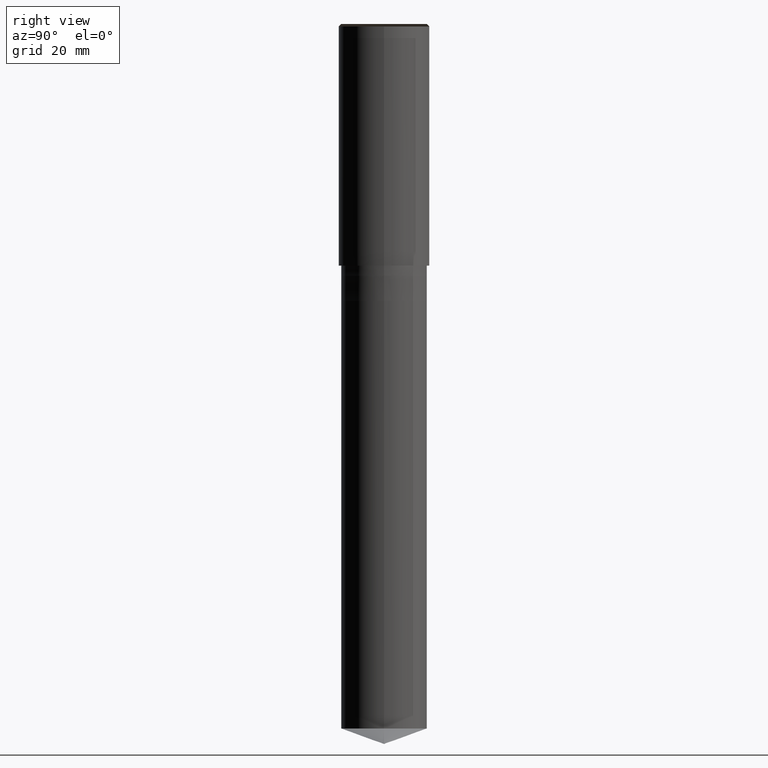
[diagram: clean part render]
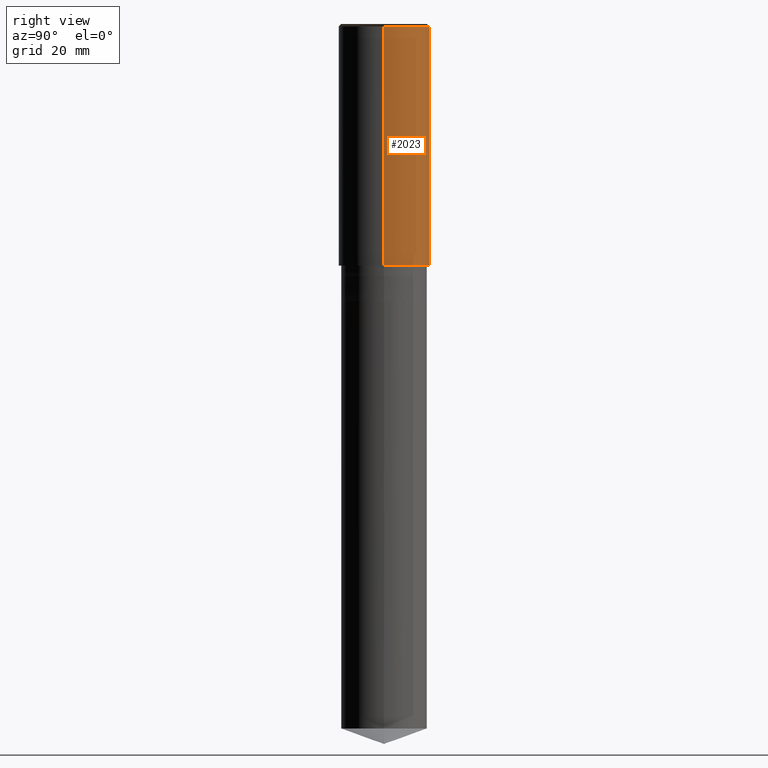
[diagram: same view with one face highlighted and labeled with its STEP entity id]
A machine part, right view. The second image highlights one B-rep face of the part: STEP entity #2023.
In plain terms, the highlighted face is a freeform B-spline surface patch.
Its self-contained STEP definition (entity closure, byte-faithful):
#1784=CARTESIAN_POINT('',(9.0,0.0,0.0));
#1785=CARTESIAN_POINT('',(9.0,9.0,0.0));
#1786=CARTESIAN_POINT('',(0.0,9.0,0.0));
#1787=CARTESIAN_POINT('',(-9.0,9.0,0.0));
#1788=CARTESIAN_POINT('',(-9.0,0.0,0.0));
#1789=CARTESIAN_POINT('',(9.0,0.0,47.5));
#1790=CARTESIAN_POINT('',(9.0,9.0,47.5));
#1791=CARTESIAN_POINT('',(0.0,9.0,47.5));
#1792=CARTESIAN_POINT('',(-9.0,9.0,47.5));
#1793=CARTESIAN_POINT('',(-9.0,0.0,47.5));
#2004=(
BOUNDED_SURFACE()
B_SPLINE_SURFACE(1,2,(
(#1784,#1785,#1786,#1787,#1788),
(#1789,#1790,#1791,#1792,#1793)
), .UNSPECIFIED.,.F.,.F.,.F.)
B_SPLINE_SURFACE_WITH_KNOTS((2,2),(3,2,3),(
0.0,1.0),(
0.0,0.5,1.0), .UNSPECIFIED.)
GEOMETRIC_REPRESENTATION_ITEM()
RATIONAL_B_SPLINE_SURFACE(((1.0,0.707106781187,1.0,0.707106781187,1.0),
(1.0,0.707106781187,1.0,0.707106781187,1.0)
))
REPRESENTATION_ITEM('')
SURFACE()
);
#2005=(
BOUNDED_CURVE()
B_SPLINE_CURVE(2,(#1788,#1787,#1786,#1785,#1784),.UNSPECIFIED.,.F.,.F.)
B_SPLINE_CURVE_WITH_KNOTS((3,2,3),
(0.0,0.5,1.0),.UNSPECIFIED.)
CURVE()
GEOMETRIC_REPRESENTATION_ITEM()
RATIONAL_B_SPLINE_CURVE((1.0,0.707106781187,1.0,0.707106781187,1.0))
REPRESENTATION_ITEM('')
);
#2006=(
BOUNDED_CURVE()
B_SPLINE_CURVE(1,(#1784,#1789),.UNSPECIFIED.,.F.,.F.)
B_SPLINE_CURVE_WITH_KNOTS((2,2),
(0.0,1.0),.UNSPECIFIED.)
CURVE()
GEOMETRIC_REPRESENTATION_ITEM()
RATIONAL_B_SPLINE_CURVE((1.0,1.0))
REPRESENTATION_ITEM('')
);
#2007=(
BOUNDED_CURVE()
B_SPLINE_CURVE(2,(#1789,#1790,#1791,#1792,#1793),.UNSPECIFIED.,.F.,.F.)
B_SPLINE_CURVE_WITH_KNOTS((3,2,3),
(0.0,0.5,1.0),.UNSPECIFIED.)
CURVE()
GEOMETRIC_REPRESENTATION_ITEM()
RATIONAL_B_SPLINE_CURVE((1.0,0.707106781187,1.0,0.707106781187,1.0))
REPRESENTATION_ITEM('')
);
#2008=(
BOUNDED_CURVE()
B_SPLINE_CURVE(1,(#1793,#1788),.UNSPECIFIED.,.F.,.F.)
B_SPLINE_CURVE_WITH_KNOTS((2,2),
(0.0,1.0),.UNSPECIFIED.)
CURVE()
GEOMETRIC_REPRESENTATION_ITEM()
RATIONAL_B_SPLINE_CURVE((1.0,1.0))
REPRESENTATION_ITEM('')
);
#2009=VERTEX_POINT('',#1784);
#2010=VERTEX_POINT('',#1788);
#2011=VERTEX_POINT('',#1789);
#2012=VERTEX_POINT('',#1793);
#2013=EDGE_CURVE('',#2010,#2009,#2005,.T.);
#2014=EDGE_CURVE('',#2009,#2011,#2006,.T.);
#2015=EDGE_CURVE('',#2011,#2012,#2007,.T.);
#2016=EDGE_CURVE('',#2012,#2010,#2008,.T.);
#2017=ORIENTED_EDGE('',*,*,#2013,.T.);
#2018=ORIENTED_EDGE('',*,*,#2014,.T.);
#2019=ORIENTED_EDGE('',*,*,#2015,.T.);
#2020=ORIENTED_EDGE('',*,*,#2016,.T.);
#2021=EDGE_LOOP('',(#2017,#2018,#2019,#2020));
#2022=FACE_OUTER_BOUND('',#2021,.T.);
#2023=ADVANCED_FACE('',(#2022),#2004,.T.);